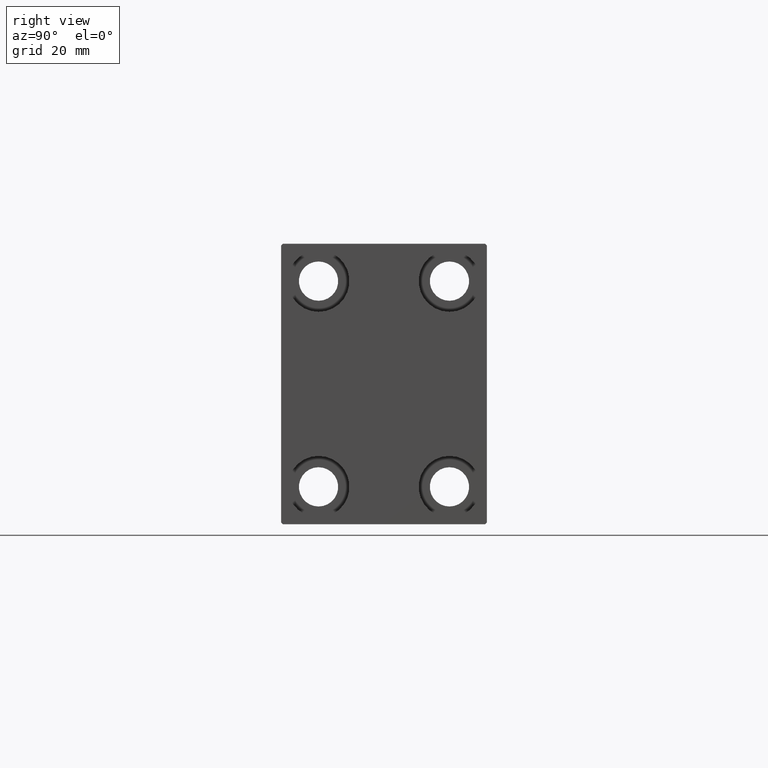
[diagram: clean part render]
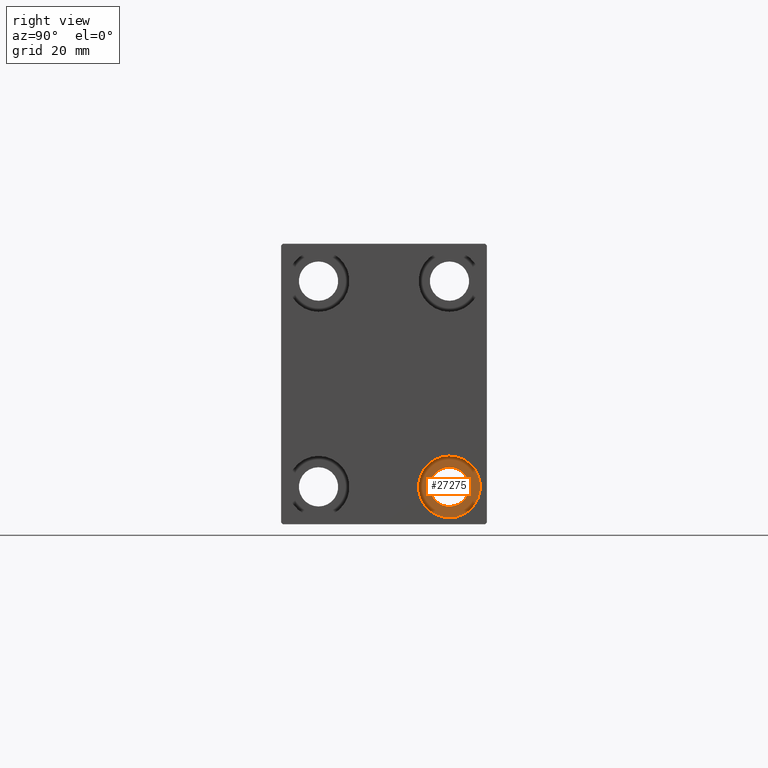
[diagram: same view with one face highlighted and labeled with its STEP entity id]
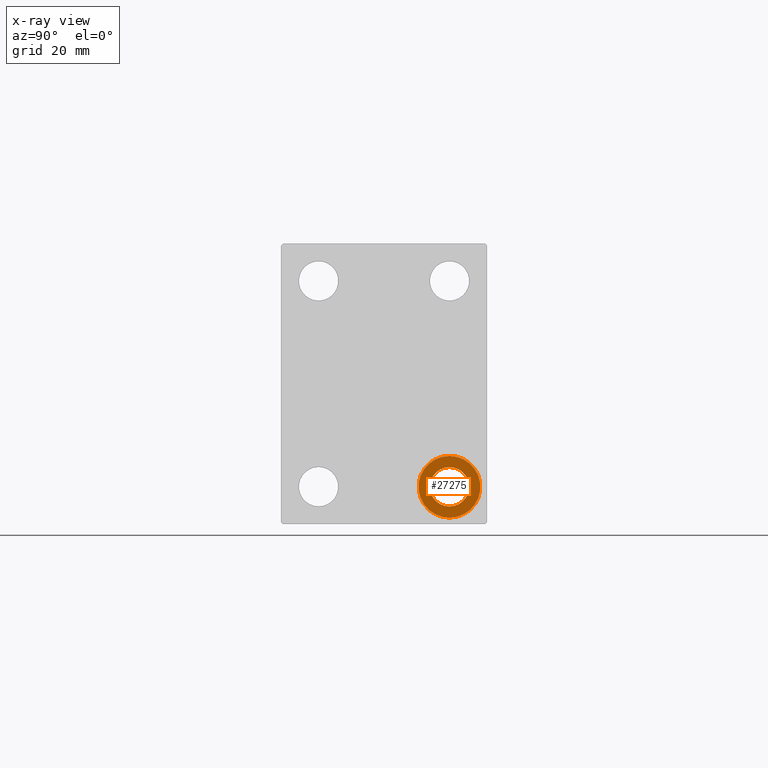
[diagram: x-ray of the same camera — body ghosted, the highlighted face saturated]
A machine part, right view. The second image highlights one B-rep face of the part: STEP entity #27275.
The next image is the same camera in x-ray: the body ghosted, the highlighted face saturated — about 0% of this face is hidden behind the body in this view.
In plain terms, the highlighted planar face has unit normal (1, 0, 0).
Its self-contained STEP definition (entity closure, byte-faithful):
#373 = EDGE_LOOP ( 'NONE', ( #27985, #14564 ) ) ;
#1163 = ORIENTED_EDGE ( 'NONE', *, *, #13071, .T. ) ;
#1204 = DIRECTION ( 'NONE',  ( 1.000000000000000000, 0.000000000000000000, -0.000000000000000000 ) ) ;
#2223 = DIRECTION ( 'NONE',  ( 0.000000000000000000, 0.000000000000000000, -1.000000000000000000 ) ) ;
#3237 = DIRECTION ( 'NONE',  ( -1.000000000000000000, -0.000000000000000000, -0.000000000000000000 ) ) ;
#5373 = DIRECTION ( 'NONE',  ( -1.000000000000000000, -0.000000000000000000, -0.000000000000000000 ) ) ;
#6020 = CIRCLE ( 'NONE', #18211, 5.249999999999997335 ) ;
#7517 = FACE_OUTER_BOUND ( 'NONE', #373, .T. ) ;
#9580 = CIRCLE ( 'NONE', #16058, 8.250000000000000000 ) ;
#10971 = AXIS2_PLACEMENT_3D ( 'NONE', #30652, #3237, #14229 ) ;
#11018 = CIRCLE ( 'NONE', #43304, 5.249999999999997335 ) ;
#11531 = PLANE ( 'NONE',  #22142 ) ;
#11754 = CARTESIAN_POINT ( 'NONE',  ( 124.0000000000000142, 17.49999999999999645, -27.50000000000000355 ) ) ;
#13071 = EDGE_CURVE ( 'NONE', #28830, #19842, #11018, .T. ) ;
#13187 = CARTESIAN_POINT ( 'NONE',  ( 124.0000000000000142, 17.49999999999999645, -32.75000000000000000 ) ) ;
#14023 = CARTESIAN_POINT ( 'NONE',  ( 124.0000000000000142, 17.49999999999999645, -27.50000000000000355 ) ) ;
#14229 = DIRECTION ( 'NONE',  ( 0.000000000000000000, 0.000000000000000000, 1.000000000000000000 ) ) ;
#14475 = CARTESIAN_POINT ( 'NONE',  ( 124.0000000000000142, 17.49999999999999645, -35.75000000000000711 ) ) ;
#14564 = ORIENTED_EDGE ( 'NONE', *, *, #30414, .F. ) ;
#15805 = CARTESIAN_POINT ( 'NONE',  ( 124.0000000000000142, 17.49999999999999645, -19.25000000000000355 ) ) ;
#16058 = AXIS2_PLACEMENT_3D ( 'NONE', #14023, #20991, #25015 ) ;
#16372 = VERTEX_POINT ( 'NONE', #14475 ) ;
#18211 = AXIS2_PLACEMENT_3D ( 'NONE', #35687, #5373, #2223 ) ;
#19842 = VERTEX_POINT ( 'NONE', #33198 ) ;
#20426 = VERTEX_POINT ( 'NONE', #15805 ) ;
#20991 = DIRECTION ( 'NONE',  ( -1.000000000000000000, -0.000000000000000000, -0.000000000000000000 ) ) ;
#21181 = CARTESIAN_POINT ( 'NONE',  ( 124.0000000000000142, 17.49999999999999645, -27.50000000000000355 ) ) ;
#21221 = DIRECTION ( 'NONE',  ( 0.000000000000000000, 0.000000000000000000, 1.000000000000000000 ) ) ;
#22142 = AXIS2_PLACEMENT_3D ( 'NONE', #11754, #1204, #21221 ) ;
#24605 = CIRCLE ( 'NONE', #10971, 8.250000000000000000 ) ;
#24767 = DIRECTION ( 'NONE',  ( 0.000000000000000000, 0.000000000000000000, -1.000000000000000000 ) ) ;
#25015 = DIRECTION ( 'NONE',  ( 0.000000000000000000, 0.000000000000000000, 1.000000000000000000 ) ) ;
#27275 = ADVANCED_FACE ( 'NONE', ( #7517, #27955 ), #11531, .T. ) ;
#27955 = FACE_BOUND ( 'NONE', #30829, .T. ) ;
#27985 = ORIENTED_EDGE ( 'NONE', *, *, #33174, .F. ) ;
#28830 = VERTEX_POINT ( 'NONE', #13187 ) ;
#30414 = EDGE_CURVE ( 'NONE', #20426, #16372, #9580, .T. ) ;
#30652 = CARTESIAN_POINT ( 'NONE',  ( 124.0000000000000142, 17.49999999999999645, -27.50000000000000355 ) ) ;
#30829 = EDGE_LOOP ( 'NONE', ( #40848, #1163 ) ) ;
#31389 = EDGE_CURVE ( 'NONE', #19842, #28830, #6020, .T. ) ;
#33174 = EDGE_CURVE ( 'NONE', #16372, #20426, #24605, .T. ) ;
#33198 = CARTESIAN_POINT ( 'NONE',  ( 124.0000000000000142, 17.49999999999999645, -22.25000000000000355 ) ) ;
#35687 = CARTESIAN_POINT ( 'NONE',  ( 124.0000000000000142, 17.49999999999999645, -27.50000000000000355 ) ) ;
#40848 = ORIENTED_EDGE ( 'NONE', *, *, #31389, .T. ) ;
#41150 = DIRECTION ( 'NONE',  ( -1.000000000000000000, -0.000000000000000000, -0.000000000000000000 ) ) ;
#43304 = AXIS2_PLACEMENT_3D ( 'NONE', #21181, #41150, #24767 ) ;